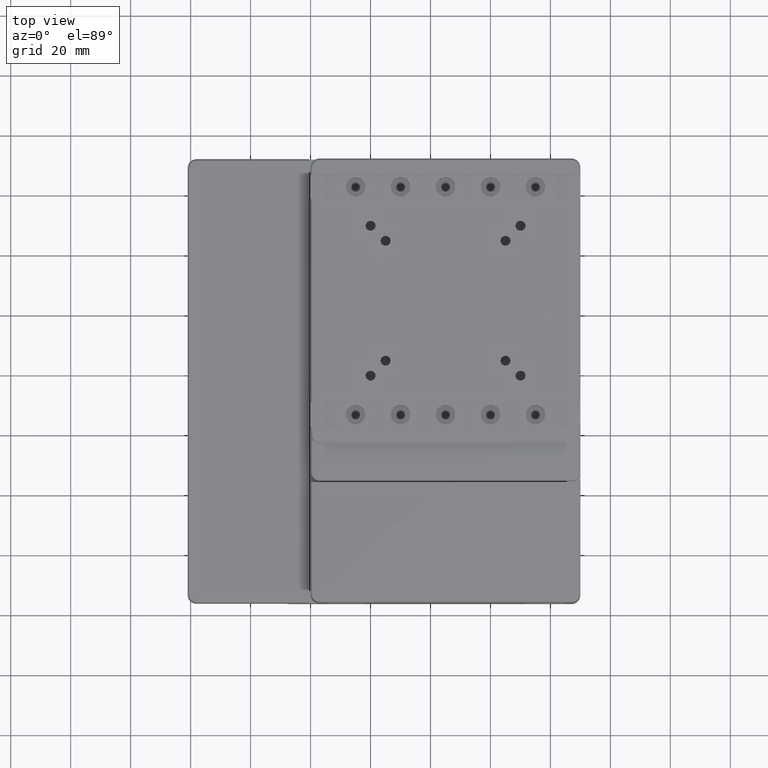
[diagram: clean part render]
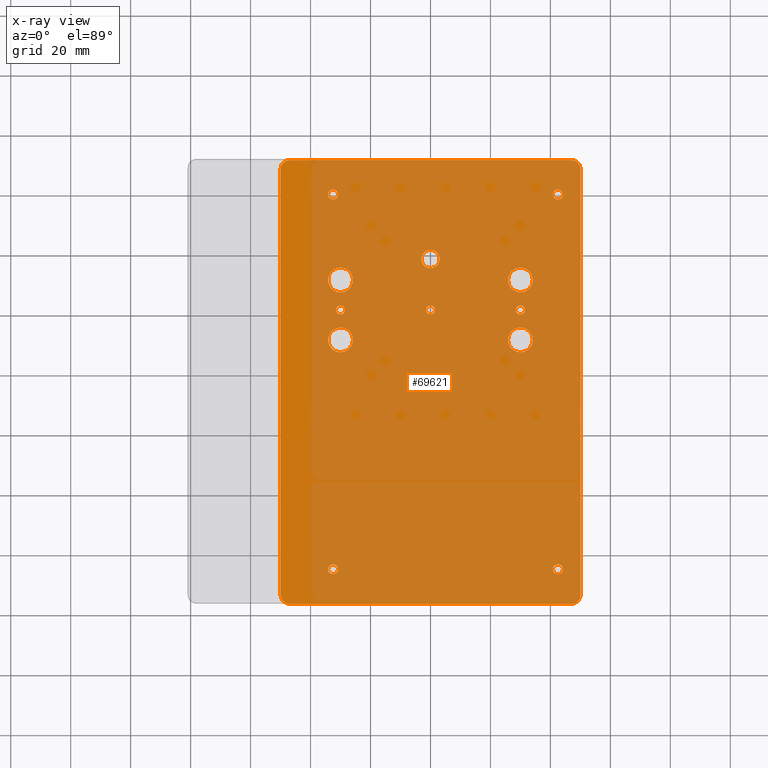
[diagram: x-ray — body ghosted, one internal face saturated and labeled with its STEP entity id]
A machine part, top view, then the same camera in x-ray: the body is ghosted and one INTERNAL B-rep face — a face not visible from any outside direction — is saturated and labeled: STEP entity #69621.
In plain terms, the highlighted planar face has unit normal (0, 0, 1).
Its self-contained STEP definition (entity closure, byte-faithful):
#640 = CARTESIAN_POINT ( 'NONE',  ( -25.87499999999999645, 9.999999999999998224, 100.0000000000000000 ) ) ;
#1374 = EDGE_CURVE ( 'NONE', #68822, #68822, #33126, .T. ) ;
#2053 = EDGE_LOOP ( 'NONE', ( #58464 ) ) ;
#3644 = ORIENTED_EDGE ( 'NONE', *, *, #10330, .T. ) ;
#4197 = CIRCLE ( 'NONE', #67236, 1.500000000000000222 ) ;
#4835 = FACE_OUTER_BOUND ( 'NONE', #75551, .T. ) ;
#5145 = EDGE_LOOP ( 'NONE', ( #29888 ) ) ;
#5304 = DIRECTION ( 'NONE',  ( 1.000000000000000000, 0.000000000000000000, -0.000000000000000000 ) ) ;
#5610 = CIRCLE ( 'NONE', #70201, 1.499999999999987566 ) ;
#5618 = DIRECTION ( 'NONE',  ( 1.000000000000000000, 0.000000000000000000, 0.000000000000000000 ) ) ;
#5923 = AXIS2_PLACEMENT_3D ( 'NONE', #41364, #43192, #5618 ) ;
#6085 = DIRECTION ( 'NONE',  ( 1.000000000000000000, 0.000000000000000000, 0.000000000000000000 ) ) ;
#6147 = ORIENTED_EDGE ( 'NONE', *, *, #61871, .T. ) ;
#6524 = VERTEX_POINT ( 'NONE', #33033 ) ;
#6836 = CARTESIAN_POINT ( 'NONE',  ( -30.00000000000000000, 0.000000000000000000, 100.0000000000000000 ) ) ;
#8230 = DIRECTION ( 'NONE',  ( 0.000000000000000000, 0.000000000000000000, -1.000000000000000000 ) ) ;
#9739 = DIRECTION ( 'NONE',  ( 1.000000000000000000, 0.000000000000000000, 0.000000000000000000 ) ) ;
#9779 = VERTEX_POINT ( 'NONE', #75617 ) ;
#9985 = DIRECTION ( 'NONE',  ( 1.000000000000000000, 0.000000000000000000, 0.000000000000000000 ) ) ;
#10330 = EDGE_CURVE ( 'NONE', #24244, #79710, #52591, .T. ) ;
#11182 = DIRECTION ( 'NONE',  ( -0.000000000000000000, -0.000000000000000000, 1.000000000000000000 ) ) ;
#11948 = DIRECTION ( 'NONE',  ( 0.000000000000000000, 0.000000000000000000, -1.000000000000000000 ) ) ;
#12046 = CARTESIAN_POINT ( 'NONE',  ( -30.85000000000021103, -86.50000000000002842, 100.0000000000000000 ) ) ;
#12445 = CIRCLE ( 'NONE', #13975, 1.649999999999991696 ) ;
#12763 = CARTESIAN_POINT ( 'NONE',  ( -47.00000000000000000, 47.00000000000000000, 100.0000000000000000 ) ) ;
#13168 = EDGE_LOOP ( 'NONE', ( #86797 ) ) ;
#13255 = FACE_BOUND ( 'NONE', #37595, .T. ) ;
#13975 = AXIS2_PLACEMENT_3D ( 'NONE', #14986, #63463, #6085 ) ;
#14986 = CARTESIAN_POINT ( 'NONE',  ( -32.50000000000019895, -86.50000000000002842, 100.0000000000000000 ) ) ;
#15215 = DIRECTION ( 'NONE',  ( 0.000000000000000000, 0.000000000000000000, -1.000000000000000000 ) ) ;
#15377 = AXIS2_PLACEMENT_3D ( 'NONE', #67093, #81681, #73693 ) ;
#15649 = CARTESIAN_POINT ( 'NONE',  ( -3.335926782146555705E-14, 17.00000000000000000, 100.0000000000000000 ) ) ;
#19019 = CARTESIAN_POINT ( 'NONE',  ( -29.99999999999999645, -10.00000000000000178, 100.0000000000000000 ) ) ;
#19400 = FACE_BOUND ( 'NONE', #29431, .T. ) ;
#19990 = AXIS2_PLACEMENT_3D ( 'NONE', #15649, #42477, #29326 ) ;
#20232 = DIRECTION ( 'NONE',  ( 0.000000000000000000, 0.000000000000000000, -1.000000000000000000 ) ) ;
#20326 = FACE_BOUND ( 'NONE', #5145, .T. ) ;
#20428 = CARTESIAN_POINT ( 'NONE',  ( 42.49999999999983658, 38.50000000000000000, 100.0000000000000000 ) ) ;
#21489 = CARTESIAN_POINT ( 'NONE',  ( 47.00000000000000000, 47.00000000000000000, 100.0000000000000000 ) ) ;
#21964 = EDGE_LOOP ( 'NONE', ( #31737 ) ) ;
#22497 = AXIS2_PLACEMENT_3D ( 'NONE', #38941, #11182, #23898 ) ;
#22611 = CARTESIAN_POINT ( 'NONE',  ( 50.00000000000000000, 47.00000000000000000, 100.0000000000000000 ) ) ;
#23625 = CARTESIAN_POINT ( 'NONE',  ( 0.000000000000000000, 0.000000000000000000, 100.0000000000000000 ) ) ;
#23898 = DIRECTION ( 'NONE',  ( -1.000000000000000000, 0.000000000000000000, 0.000000000000000000 ) ) ;
#24244 = VERTEX_POINT ( 'NONE', #87155 ) ;
#24700 = VERTEX_POINT ( 'NONE', #22611 ) ;
#24848 = EDGE_CURVE ( 'NONE', #61916, #61916, #42841, .T. ) ;
#25001 = DIRECTION ( 'NONE',  ( 1.000000000000000000, 0.000000000000000000, 0.000000000000000000 ) ) ;
#25631 = CARTESIAN_POINT ( 'NONE',  ( -25.87499999999999645, -10.00000000000000178, 100.0000000000000000 ) ) ;
#25677 = EDGE_CURVE ( 'NONE', #84488, #84488, #12445, .T. ) ;
#25916 = AXIS2_PLACEMENT_3D ( 'NONE', #88208, #43992, #73628 ) ;
#26809 = DIRECTION ( 'NONE',  ( 0.000000000000000000, -1.000000000000000000, -0.000000000000000000 ) ) ;
#27397 = FACE_BOUND ( 'NONE', #13168, .T. ) ;
#28294 = VECTOR ( 'NONE', #73316, 1000.000000000000000 ) ;
#28335 = EDGE_CURVE ( 'NONE', #24700, #24244, #54409, .T. ) ;
#28989 = ORIENTED_EDGE ( 'NONE', *, *, #68863, .T. ) ;
#29326 = DIRECTION ( 'NONE',  ( 1.000000000000000000, 0.000000000000000000, 0.000000000000000000 ) ) ;
#29431 = EDGE_LOOP ( 'NONE', ( #64005 ) ) ;
#29888 = ORIENTED_EDGE ( 'NONE', *, *, #59349, .T. ) ;
#29977 = CIRCLE ( 'NONE', #5923, 1.649999999999984812 ) ;
#30928 = DIRECTION ( 'NONE',  ( 0.000000000000000000, 0.000000000000000000, -1.000000000000000000 ) ) ;
#31378 = CARTESIAN_POINT ( 'NONE',  ( 30.00000000000000711, 9.999999999999998224, 100.0000000000000000 ) ) ;
#31659 = ORIENTED_EDGE ( 'NONE', *, *, #74522, .T. ) ;
#31737 = ORIENTED_EDGE ( 'NONE', *, *, #24848, .T. ) ;
#31987 = CIRCLE ( 'NONE', #15377, 4.125000000000000000 ) ;
#32551 = ORIENTED_EDGE ( 'NONE', *, *, #58786, .T. ) ;
#32603 = PLANE ( 'NONE',  #45107 ) ;
#33033 = CARTESIAN_POINT ( 'NONE',  ( -30.85000000000018971, 38.50000000000000000, 100.0000000000000000 ) ) ;
#33126 = CIRCLE ( 'NONE', #78165, 4.124999999999996447 ) ;
#33371 = EDGE_CURVE ( 'NONE', #35512, #83584, #34945, .T. ) ;
#34281 = AXIS2_PLACEMENT_3D ( 'NONE', #12763, #63541, #41453 ) ;
#34945 = CIRCLE ( 'NONE', #25916, 3.000000000000002665 ) ;
#35394 = ORIENTED_EDGE ( 'NONE', *, *, #84633, .T. ) ;
#35512 = VERTEX_POINT ( 'NONE', #85856 ) ;
#35529 = DIRECTION ( 'NONE',  ( 1.000000000000000000, 0.000000000000000000, 0.000000000000000000 ) ) ;
#35593 = ORIENTED_EDGE ( 'NONE', *, *, #28335, .T. ) ;
#37460 = CIRCLE ( 'NONE', #22497, 3.000000000000002665 ) ;
#37510 = CARTESIAN_POINT ( 'NONE',  ( -50.00000000000000000, -95.00000000000000000, 100.0000000000000000 ) ) ;
#37595 = EDGE_LOOP ( 'NONE', ( #31659 ) ) ;
#38340 = EDGE_LOOP ( 'NONE', ( #73556 ) ) ;
#38941 = CARTESIAN_POINT ( 'NONE',  ( -47.00000000000000000, -95.00000000000000000, 100.0000000000000000 ) ) ;
#39157 = AXIS2_PLACEMENT_3D ( 'NONE', #20428, #15215, #92407 ) ;
#39732 = VERTEX_POINT ( 'NONE', #47267 ) ;
#40110 = FACE_BOUND ( 'NONE', #71722, .T. ) ;
#40540 = AXIS2_PLACEMENT_3D ( 'NONE', #84221, #20232, #41850 ) ;
#41031 = FACE_BOUND ( 'NONE', #38340, .T. ) ;
#41364 = CARTESIAN_POINT ( 'NONE',  ( 42.49999999999981526, -86.50000000000002842, 100.0000000000000000 ) ) ;
#41453 = DIRECTION ( 'NONE',  ( -1.000000000000000000, 0.000000000000000000, 0.000000000000000000 ) ) ;
#41850 = DIRECTION ( 'NONE',  ( 1.000000000000000000, 0.000000000000000000, 0.000000000000000000 ) ) ;
#42477 = DIRECTION ( 'NONE',  ( 0.000000000000000000, 0.000000000000000000, -1.000000000000000000 ) ) ;
#42518 = ORIENTED_EDGE ( 'NONE', *, *, #64085, .T. ) ;
#42841 = CIRCLE ( 'NONE', #66882, 4.124999999999996447 ) ;
#43192 = DIRECTION ( 'NONE',  ( 0.000000000000000000, 0.000000000000000000, -1.000000000000000000 ) ) ;
#43211 = LINE ( 'NONE', #45075, #46015 ) ;
#43221 = CARTESIAN_POINT ( 'NONE',  ( -47.00000000000000000, 50.00000000000000000, 100.0000000000000000 ) ) ;
#43660 = VERTEX_POINT ( 'NONE', #78965 ) ;
#43992 = DIRECTION ( 'NONE',  ( -0.000000000000000000, -0.000000000000000000, 1.000000000000000000 ) ) ;
#45075 = CARTESIAN_POINT ( 'NONE',  ( 0.000000000000000000, -98.00000000000000000, 100.0000000000000000 ) ) ;
#45107 = AXIS2_PLACEMENT_3D ( 'NONE', #69727, #84321, #5304 ) ;
#45351 = LINE ( 'NONE', #81573, #57553 ) ;
#46015 = VECTOR ( 'NONE', #64861, 1000.000000000000000 ) ;
#47267 = CARTESIAN_POINT ( 'NONE',  ( 44.14999999999979963, -86.50000000000002842, 100.0000000000000000 ) ) ;
#47975 = LINE ( 'NONE', #77131, #92054 ) ;
#48211 = AXIS2_PLACEMENT_3D ( 'NONE', #89903, #62589, #25001 ) ;
#48242 = CIRCLE ( 'NONE', #39157, 1.649999999999991696 ) ;
#49907 = VERTEX_POINT ( 'NONE', #37510 ) ;
#51058 = CIRCLE ( 'NONE', #76643, 4.125000000000000000 ) ;
#52591 = LINE ( 'NONE', #59211, #28294 ) ;
#53379 = DIRECTION ( 'NONE',  ( 1.000000000000000000, 0.000000000000000000, 0.000000000000000000 ) ) ;
#53519 = DIRECTION ( 'NONE',  ( 0.000000000000000000, 0.000000000000000000, -1.000000000000000000 ) ) ;
#53938 = CARTESIAN_POINT ( 'NONE',  ( 34.12500000000000000, -10.00000000000000178, 100.0000000000000000 ) ) ;
#54409 = CIRCLE ( 'NONE', #69433, 3.000000000000002665 ) ;
#56452 = EDGE_LOOP ( 'NONE', ( #59479 ) ) ;
#56540 = EDGE_CURVE ( 'NONE', #66080, #66080, #5610, .T. ) ;
#56988 = EDGE_CURVE ( 'NONE', #81616, #81616, #4197, .T. ) ;
#57240 = EDGE_LOOP ( 'NONE', ( #32551 ) ) ;
#57316 = EDGE_CURVE ( 'NONE', #79710, #67228, #83891, .T. ) ;
#57553 = VECTOR ( 'NONE', #80632, 1000.000000000000000 ) ;
#58464 = ORIENTED_EDGE ( 'NONE', *, *, #56540, .T. ) ;
#58786 = EDGE_CURVE ( 'NONE', #39732, #39732, #29977, .T. ) ;
#59211 = CARTESIAN_POINT ( 'NONE',  ( 0.000000000000000000, 50.00000000000000000, 100.0000000000000000 ) ) ;
#59250 = CARTESIAN_POINT ( 'NONE',  ( -47.00000000000000000, -98.00000000000000000, 100.0000000000000000 ) ) ;
#59349 = EDGE_CURVE ( 'NONE', #90066, #90066, #51058, .T. ) ;
#59479 = ORIENTED_EDGE ( 'NONE', *, *, #71678, .T. ) ;
#60547 = CIRCLE ( 'NONE', #19990, 3.050000000000000711 ) ;
#61871 = EDGE_CURVE ( 'NONE', #63665, #63665, #48242, .T. ) ;
#61916 = VERTEX_POINT ( 'NONE', #53938 ) ;
#62210 = FACE_BOUND ( 'NONE', #21964, .T. ) ;
#62589 = DIRECTION ( 'NONE',  ( 0.000000000000000000, 0.000000000000000000, -1.000000000000000000 ) ) ;
#63463 = DIRECTION ( 'NONE',  ( 0.000000000000000000, 0.000000000000000000, -1.000000000000000000 ) ) ;
#63541 = DIRECTION ( 'NONE',  ( -0.000000000000000000, -0.000000000000000000, 1.000000000000000000 ) ) ;
#63665 = VERTEX_POINT ( 'NONE', #78721 ) ;
#64005 = ORIENTED_EDGE ( 'NONE', *, *, #70582, .T. ) ;
#64085 = EDGE_CURVE ( 'NONE', #64580, #64580, #31987, .T. ) ;
#64489 = EDGE_CURVE ( 'NONE', #83584, #24700, #45351, .T. ) ;
#64580 = VERTEX_POINT ( 'NONE', #640 ) ;
#64861 = DIRECTION ( 'NONE',  ( 1.000000000000000000, 0.000000000000000000, -0.000000000000000000 ) ) ;
#65783 = EDGE_LOOP ( 'NONE', ( #79630 ) ) ;
#66080 = VERTEX_POINT ( 'NONE', #73626 ) ;
#66422 = DIRECTION ( 'NONE',  ( 0.000000000000000000, 0.000000000000000000, -1.000000000000000000 ) ) ;
#66882 = AXIS2_PLACEMENT_3D ( 'NONE', #83605, #53519, #69475 ) ;
#67093 = CARTESIAN_POINT ( 'NONE',  ( -29.99999999999999645, 9.999999999999998224, 100.0000000000000000 ) ) ;
#67228 = VERTEX_POINT ( 'NONE', #83254 ) ;
#67236 = AXIS2_PLACEMENT_3D ( 'NONE', #23625, #66422, #9985 ) ;
#68791 = FACE_BOUND ( 'NONE', #57240, .T. ) ;
#68822 = VERTEX_POINT ( 'NONE', #75909 ) ;
#68863 = EDGE_CURVE ( 'NONE', #49907, #71939, #37460, .T. ) ;
#69433 = AXIS2_PLACEMENT_3D ( 'NONE', #21489, #87785, #87333 ) ;
#69475 = DIRECTION ( 'NONE',  ( 1.000000000000000000, 0.000000000000000000, 0.000000000000000000 ) ) ;
#69621 = ADVANCED_FACE ( 'NONE', ( #4835, #75872, #19400, #68791, #82929, #40110, #20326, #62210, #27397, #77706, #76797, #13255, #41031 ), #32603, .T. ) ;
#69727 = CARTESIAN_POINT ( 'NONE',  ( 0.000000000000000000, 0.000000000000000000, 100.0000000000000000 ) ) ;
#70201 = AXIS2_PLACEMENT_3D ( 'NONE', #6836, #8230, #35529 ) ;
#70582 = EDGE_CURVE ( 'NONE', #6524, #6524, #81091, .T. ) ;
#71022 = ORIENTED_EDGE ( 'NONE', *, *, #64489, .T. ) ;
#71225 = ORIENTED_EDGE ( 'NONE', *, *, #78666, .T. ) ;
#71678 = EDGE_CURVE ( 'NONE', #43660, #43660, #85721, .T. ) ;
#71722 = EDGE_LOOP ( 'NONE', ( #42518 ) ) ;
#71939 = VERTEX_POINT ( 'NONE', #59250 ) ;
#73316 = DIRECTION ( 'NONE',  ( -1.000000000000000000, -0.000000000000000000, 0.000000000000000000 ) ) ;
#73556 = ORIENTED_EDGE ( 'NONE', *, *, #56988, .T. ) ;
#73626 = CARTESIAN_POINT ( 'NONE',  ( -28.50000000000001066, 0.000000000000000000, 100.0000000000000000 ) ) ;
#73628 = DIRECTION ( 'NONE',  ( -1.000000000000000000, 0.000000000000000000, 0.000000000000000000 ) ) ;
#73693 = DIRECTION ( 'NONE',  ( 1.000000000000000000, 0.000000000000000000, 0.000000000000000000 ) ) ;
#74522 = EDGE_CURVE ( 'NONE', #9779, #9779, #60547, .T. ) ;
#75011 = CARTESIAN_POINT ( 'NONE',  ( 1.500000000000000222, 0.000000000000000000, 100.0000000000000000 ) ) ;
#75551 = EDGE_LOOP ( 'NONE', ( #71225, #78706, #71022, #35593, #3644, #78336, #35394, #28989 ) ) ;
#75617 = CARTESIAN_POINT ( 'NONE',  ( 3.049999999999967404, 17.00000000000000000, 100.0000000000000000 ) ) ;
#75872 = FACE_BOUND ( 'NONE', #84407, .T. ) ;
#75909 = CARTESIAN_POINT ( 'NONE',  ( 34.12500000000000000, 9.999999999999998224, 100.0000000000000000 ) ) ;
#76434 = CARTESIAN_POINT ( 'NONE',  ( 50.00000000000000000, -94.99999999999998579, 100.0000000000000000 ) ) ;
#76643 = AXIS2_PLACEMENT_3D ( 'NONE', #19019, #11948, #53379 ) ;
#76797 = FACE_BOUND ( 'NONE', #2053, .T. ) ;
#77131 = CARTESIAN_POINT ( 'NONE',  ( -50.00000000000000000, 0.000000000000000000, 100.0000000000000000 ) ) ;
#77706 = FACE_BOUND ( 'NONE', #56452, .T. ) ;
#78165 = AXIS2_PLACEMENT_3D ( 'NONE', #31378, #30928, #9739 ) ;
#78336 = ORIENTED_EDGE ( 'NONE', *, *, #57316, .T. ) ;
#78666 = EDGE_CURVE ( 'NONE', #71939, #35512, #43211, .T. ) ;
#78706 = ORIENTED_EDGE ( 'NONE', *, *, #33371, .T. ) ;
#78721 = CARTESIAN_POINT ( 'NONE',  ( 44.14999999999982805, 38.50000000000000000, 100.0000000000000000 ) ) ;
#78965 = CARTESIAN_POINT ( 'NONE',  ( 31.49999999999998579, 0.000000000000000000, 100.0000000000000000 ) ) ;
#79630 = ORIENTED_EDGE ( 'NONE', *, *, #25677, .T. ) ;
#79710 = VERTEX_POINT ( 'NONE', #43221 ) ;
#80632 = DIRECTION ( 'NONE',  ( -0.000000000000000000, 1.000000000000000000, 0.000000000000000000 ) ) ;
#81091 = CIRCLE ( 'NONE', #40540, 1.649999999999991696 ) ;
#81573 = CARTESIAN_POINT ( 'NONE',  ( 50.00000000000000000, 0.000000000000000000, 100.0000000000000000 ) ) ;
#81616 = VERTEX_POINT ( 'NONE', #75011 ) ;
#81681 = DIRECTION ( 'NONE',  ( 0.000000000000000000, 0.000000000000000000, -1.000000000000000000 ) ) ;
#82929 = FACE_BOUND ( 'NONE', #65783, .T. ) ;
#83254 = CARTESIAN_POINT ( 'NONE',  ( -50.00000000000000000, 47.00000000000000000, 100.0000000000000000 ) ) ;
#83584 = VERTEX_POINT ( 'NONE', #76434 ) ;
#83605 = CARTESIAN_POINT ( 'NONE',  ( 30.00000000000000711, -10.00000000000000178, 100.0000000000000000 ) ) ;
#83891 = CIRCLE ( 'NONE', #34281, 3.000000000000002665 ) ;
#84221 = CARTESIAN_POINT ( 'NONE',  ( -32.50000000000018474, 38.50000000000000000, 100.0000000000000000 ) ) ;
#84321 = DIRECTION ( 'NONE',  ( 0.000000000000000000, 0.000000000000000000, 1.000000000000000000 ) ) ;
#84407 = EDGE_LOOP ( 'NONE', ( #6147 ) ) ;
#84488 = VERTEX_POINT ( 'NONE', #12046 ) ;
#84633 = EDGE_CURVE ( 'NONE', #67228, #49907, #47975, .T. ) ;
#85721 = CIRCLE ( 'NONE', #48211, 1.499999999999987566 ) ;
#85856 = CARTESIAN_POINT ( 'NONE',  ( 47.00000000000000000, -98.00000000000000000, 100.0000000000000000 ) ) ;
#86797 = ORIENTED_EDGE ( 'NONE', *, *, #1374, .T. ) ;
#87155 = CARTESIAN_POINT ( 'NONE',  ( 47.00000000000000000, 50.00000000000000000, 100.0000000000000000 ) ) ;
#87333 = DIRECTION ( 'NONE',  ( -1.000000000000000000, 0.000000000000000000, 0.000000000000000000 ) ) ;
#87785 = DIRECTION ( 'NONE',  ( -0.000000000000000000, -0.000000000000000000, 1.000000000000000000 ) ) ;
#88208 = CARTESIAN_POINT ( 'NONE',  ( 47.00000000000000000, -94.99999999999998579, 100.0000000000000000 ) ) ;
#89903 = CARTESIAN_POINT ( 'NONE',  ( 30.00000000000000000, 0.000000000000000000, 100.0000000000000000 ) ) ;
#90066 = VERTEX_POINT ( 'NONE', #25631 ) ;
#92054 = VECTOR ( 'NONE', #26809, 1000.000000000000000 ) ;
#92407 = DIRECTION ( 'NONE',  ( 1.000000000000000000, 0.000000000000000000, 0.000000000000000000 ) ) ;